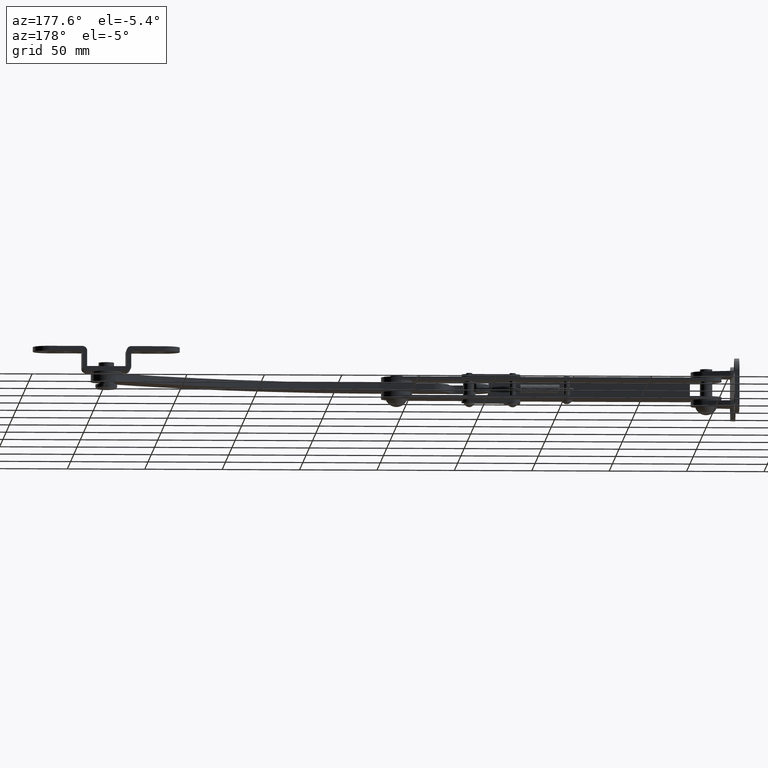
[diagram: clean part render]
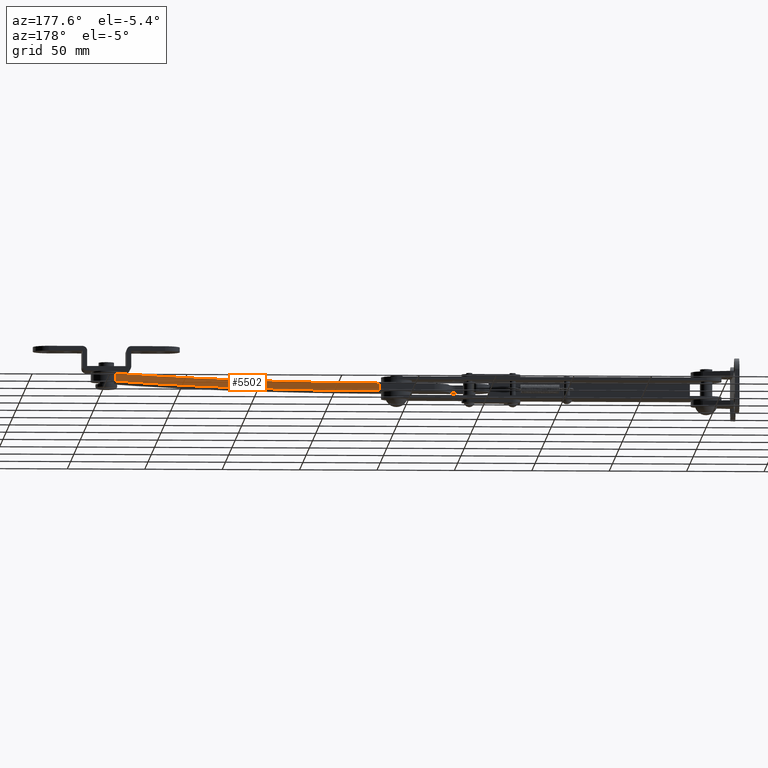
[diagram: same view with one face highlighted and labeled with its STEP entity id]
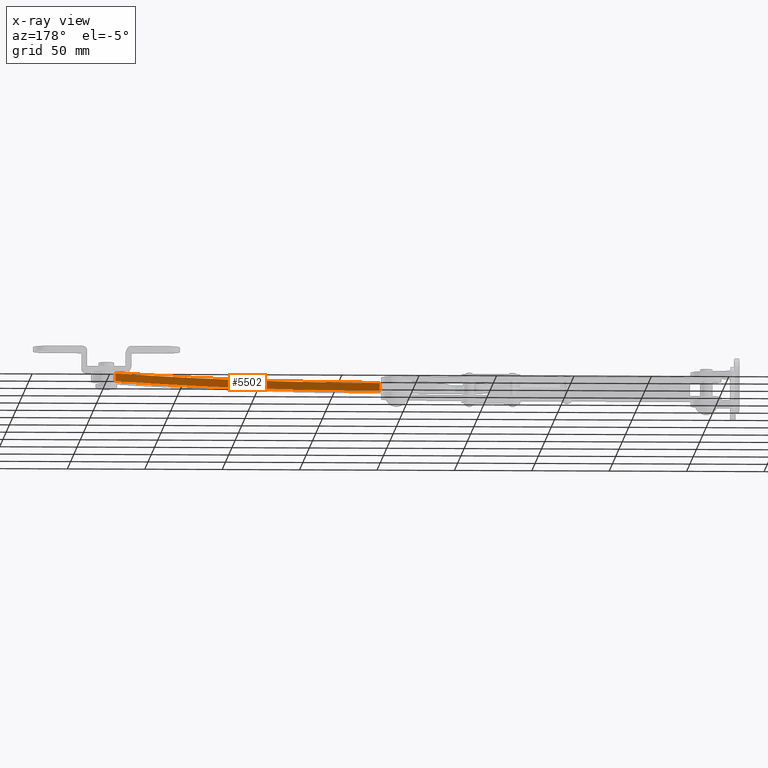
[diagram: x-ray of the same camera — body ghosted, the highlighted face saturated]
A machine part, auxiliary view. The second image highlights one B-rep face of the part: STEP entity #5502.
The next image is the same camera in x-ray: the body ghosted, the highlighted face saturated — about 0% of this face is hidden behind the body in this view.
In plain terms, the highlighted cylindrical surface (partial cylindrical patch) has radius 311 mm, axis along (0, 0, -1).
Its self-contained STEP definition (entity closure, byte-faithful):
#182 = CARTESIAN_POINT ( 'NONE',  ( 211.2709216213670800, 10.19993571198973800, 2.499999999999889900 ) ) ;
#1162 = DIRECTION ( 'NONE',  ( 1.000000000000000000, 0.0000000000000000000, 0.0000000000000000000 ) ) ;
#2292 = VECTOR ( 'NONE', #16169, 1000.000000000000000 ) ;
#3142 = CARTESIAN_POINT ( 'NONE',  ( 200.1210320001973700, 320.9999999996568900, 2.499999999999889900 ) ) ;
#3362 = CARTESIAN_POINT ( 'NONE',  ( 211.2709216213670800, 10.19993571198973800, 2.499999999999889900 ) ) ;
#4440 = DIRECTION ( 'NONE',  ( 1.000000000000000000, 0.0000000000000000000, 0.0000000000000000000 ) ) ;
#4887 = LINE ( 'NONE', #182, #7932 ) ;
#5502 = ADVANCED_FACE ( 'NONE', ( #10248 ), #9844, .F. ) ;
#6362 = CARTESIAN_POINT ( 'NONE',  ( 211.2709216213670800, 10.19993571198973800, -2.500000000000000000 ) ) ;
#6367 = AXIS2_PLACEMENT_3D ( 'NONE', #9922, #7324, #11238 ) ;
#6442 = ORIENTED_EDGE ( 'NONE', *, *, #14874, .F. ) ;
#7324 = DIRECTION ( 'NONE',  ( 0.0000000000000000000, 0.0000000000000000000, -1.000000000000000000 ) ) ;
#7932 = VECTOR ( 'NONE', #11849, 1000.000000000000000 ) ;
#7938 = AXIS2_PLACEMENT_3D ( 'NONE', #3142, #12175, #4440 ) ;
#8404 = VERTEX_POINT ( 'NONE', #11231 ) ;
#8479 = CARTESIAN_POINT ( 'NONE',  ( 384.3714106253988200, 70.45499810129089700, 2.499999999999889900 ) ) ;
#8579 = ORIENTED_EDGE ( 'NONE', *, *, #15545, .T. ) ;
#8752 = LINE ( 'NONE', #8479, #2292 ) ;
#8886 = DIRECTION ( 'NONE',  ( 0.0000000000000000000, -0.0000000000000000000, 1.000000000000000000 ) ) ;
#9659 = VERTEX_POINT ( 'NONE', #6362 ) ;
#9754 = CIRCLE ( 'NONE', #7938, 310.9999999996500200 ) ;
#9844 = CYLINDRICAL_SURFACE ( 'NONE', #6367, 310.9999999996500200 ) ;
#9922 = CARTESIAN_POINT ( 'NONE',  ( 200.1210320001973700, 320.9999999996568900, 2.499999999999889900 ) ) ;
#10227 = VERTEX_POINT ( 'NONE', #3362 ) ;
#10248 = FACE_OUTER_BOUND ( 'NONE', #15587, .T. ) ;
#11179 = AXIS2_PLACEMENT_3D ( 'NONE', #16568, #8886, #1162 ) ;
#11231 = CARTESIAN_POINT ( 'NONE',  ( 384.3714106253988200, 70.45499810129089700, 2.499999999999889900 ) ) ;
#11238 = DIRECTION ( 'NONE',  ( -1.000000000000000000, 0.0000000000000000000, 0.0000000000000000000 ) ) ;
#11849 = DIRECTION ( 'NONE',  ( 0.0000000000000000000, 0.0000000000000000000, -1.000000000000000000 ) ) ;
#12175 = DIRECTION ( 'NONE',  ( 0.0000000000000000000, -0.0000000000000000000, 1.000000000000000000 ) ) ;
#12960 = CARTESIAN_POINT ( 'NONE',  ( 384.3714106253988200, 70.45499810129089700, -2.500000000000000000 ) ) ;
#13928 = ORIENTED_EDGE ( 'NONE', *, *, #15301, .T. ) ;
#14828 = ORIENTED_EDGE ( 'NONE', *, *, #16185, .F. ) ;
#14874 = EDGE_CURVE ( 'NONE', #9659, #16058, #16590, .T. ) ;
#15301 = EDGE_CURVE ( 'NONE', #8404, #16058, #8752, .T. ) ;
#15545 = EDGE_CURVE ( 'NONE', #10227, #8404, #9754, .T. ) ;
#15587 = EDGE_LOOP ( 'NONE', ( #6442, #14828, #8579, #13928 ) ) ;
#16058 = VERTEX_POINT ( 'NONE', #12960 ) ;
#16169 = DIRECTION ( 'NONE',  ( 0.0000000000000000000, 0.0000000000000000000, -1.000000000000000000 ) ) ;
#16185 = EDGE_CURVE ( 'NONE', #10227, #9659, #4887, .T. ) ;
#16568 = CARTESIAN_POINT ( 'NONE',  ( 200.1210320001973700, 320.9999999996568900, -2.500000000000000000 ) ) ;
#16590 = CIRCLE ( 'NONE', #11179, 310.9999999996500200 ) ;